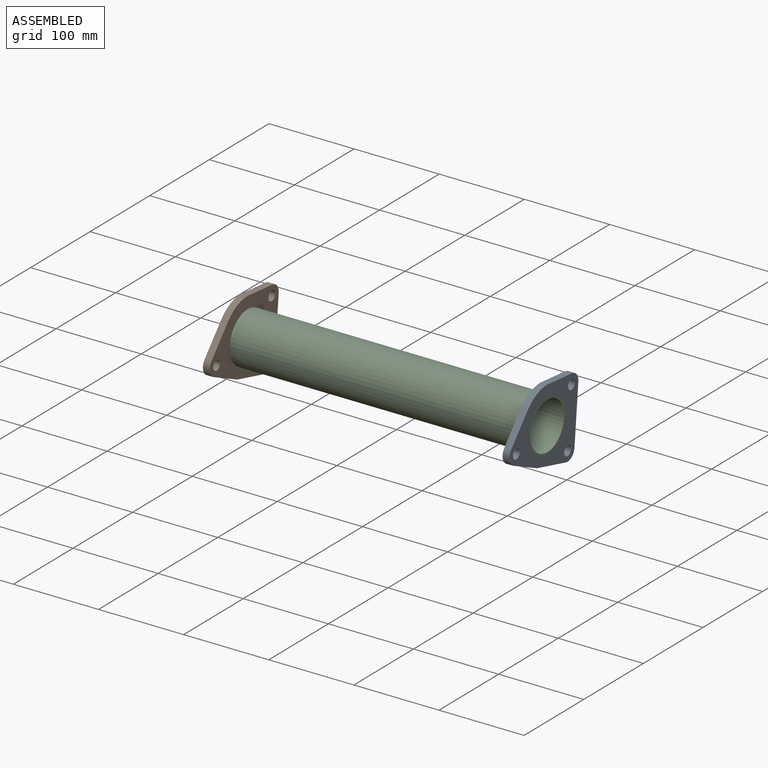
[diagram: assembled view]
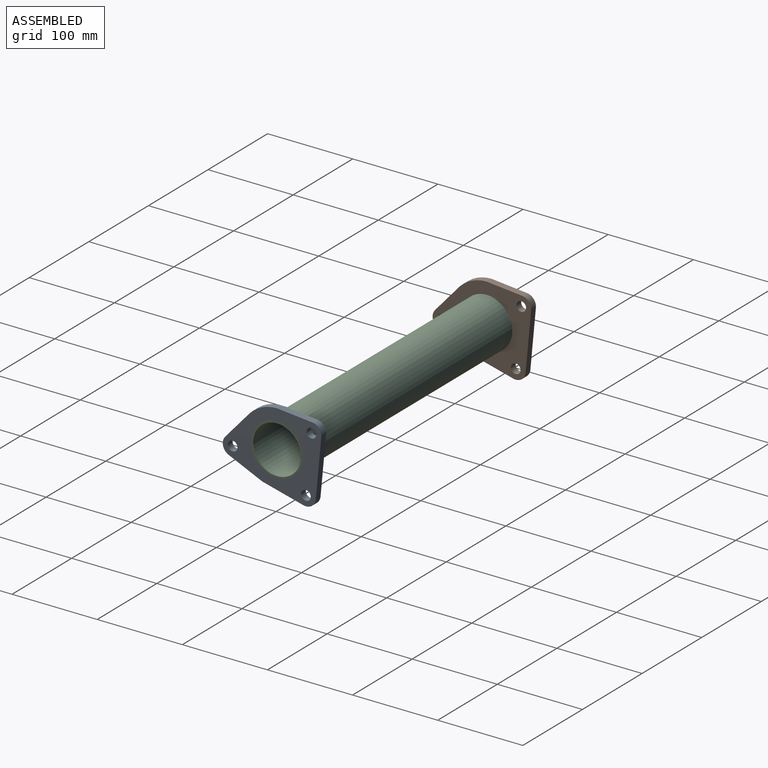
[diagram: assembled view, second angle]
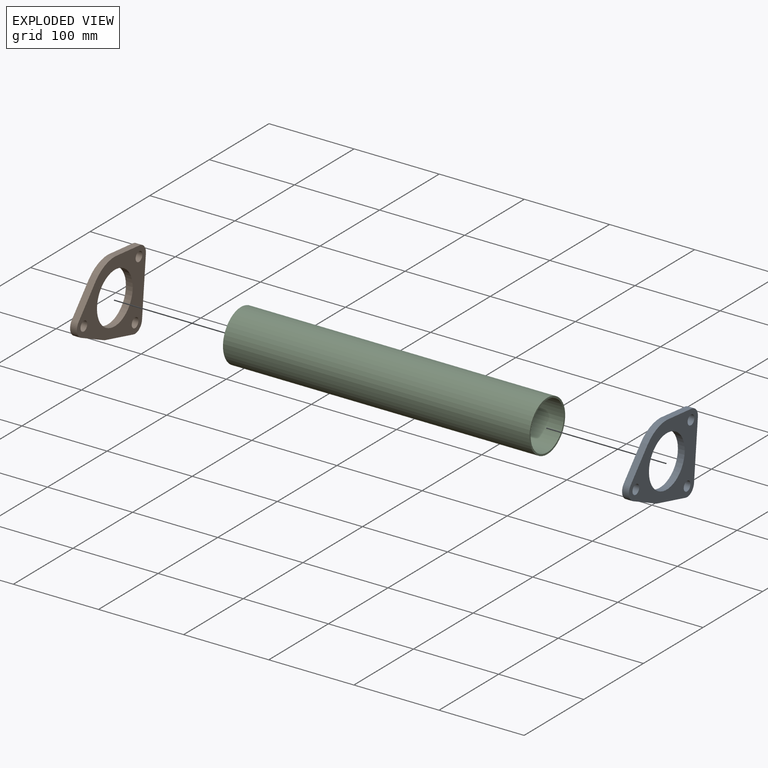
[diagram: exploded view]
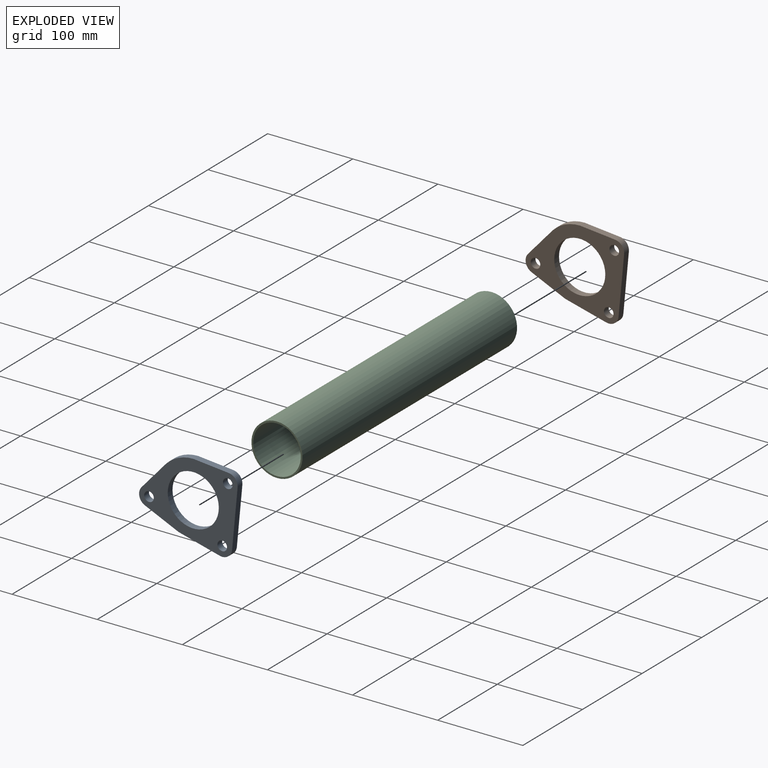
[diagram: exploded view, second angle]
ASSEMBLY  parts=3 mates=2
PART A: 16 faces, bbox 8x115.8x95 mm
  f0: plane 41.6x8mm, normal (0,0.09,1), area 334.3mm2, adj f1,f13,f14,f15
  f1: cylinder r=44mm len=31.79mm, axis (-1,0,0), area 284.2mm2, adj f0,f2,f14,f15
  f2: plane 32.7x28.94mm, normal (0,-0.75,0.66), area 349.3mm2, adj f1,f3,f14,f15
  f3: cylinder r=11.65mm len=18.23mm, axis (-1,0,0), area 172.3mm2, adj f2,f4,f14,f15
  f4: plane 39.49x17.66mm, normal (0,-0.41,-0.91), area 346.1mm2, adj f3,f5,f14,f15
  f5: cylinder r=5mm len=8mm, axis (-1,0,0), area 6.9mm2, adj f4,f6,f14,f15
  f6: plane 47.88x12.17mm, normal (0,-0.25,-0.97), area 395.2mm2, adj f5,f7,f14,f15
  f7: cylinder r=11.65mm len=14.51mm, axis (-1,0,0), area 165.3mm2, adj f6,f8,f14,f15
  f8: plane 67.22x8mm, normal (0,1,-0.1), area 540.2mm2, adj f7,f13,f14,f15
  f9: cylinder r=30mm len=60mm, axis (-1,0,0), area 1508mm2, adj f14,f15
  f10: cylinder r=5.65mm len=11.3mm, axis (-1,0,0), area 284mm2, adj f14,f15
  f11: cylinder r=5.65mm len=11.3mm, axis (-1,0,0), area 284mm2, adj f14,f15
  f12: cylinder r=5.65mm len=11.3mm, axis (-1,0,0), area 284mm2, adj f14,f15
  f13: cylinder r=11.65mm len=12.71mm, axis (-1,0,0), area 146.5mm2, adj f0,f8,f14,f15
  f14: plane 115.8x94.97mm, normal (1,0,0), area 4859.8mm2, adj f0,f1,f2,f3,f4,f5,f6,f7
  f15: plane 115.8x94.97mm, normal (-1,0,0), area 4859.8mm2, adj f0,f1,f2,f3,f4,f5,f6,f7
PART B: same geometry as A
PART C: 4 faces, bbox 360x60x60 mm
  f0: cylinder r=28mm len=360mm, axis (-1,0,0), area 63334.5mm2, adj f2,f3
  f1: cylinder r=30mm len=360mm, axis (-1,0,0), area 67858.4mm2, adj f2,f3
  f2: plane 60x60mm, normal (1,0,0), area 364.4mm2, adj f0,f1
  f3: plane 60x60mm, normal (-1,0,0), area 364.4mm2, adj f0,f1
PLACE A t=(176.11,90.01,-17.48)mm
PLACE B t=(-175.89,90.01,-17.48)mm
PLACE C t=(-175.89,90.01,-17.48)mm
MATE fastened A.f1 <-> C.f1  axis (1,0,0) through (184.11,90.01,-17.48)mm
MATE fastened B.f1 <-> C.f1  axis (-1,0,0) through (-175.89,90.01,-17.48)mm
